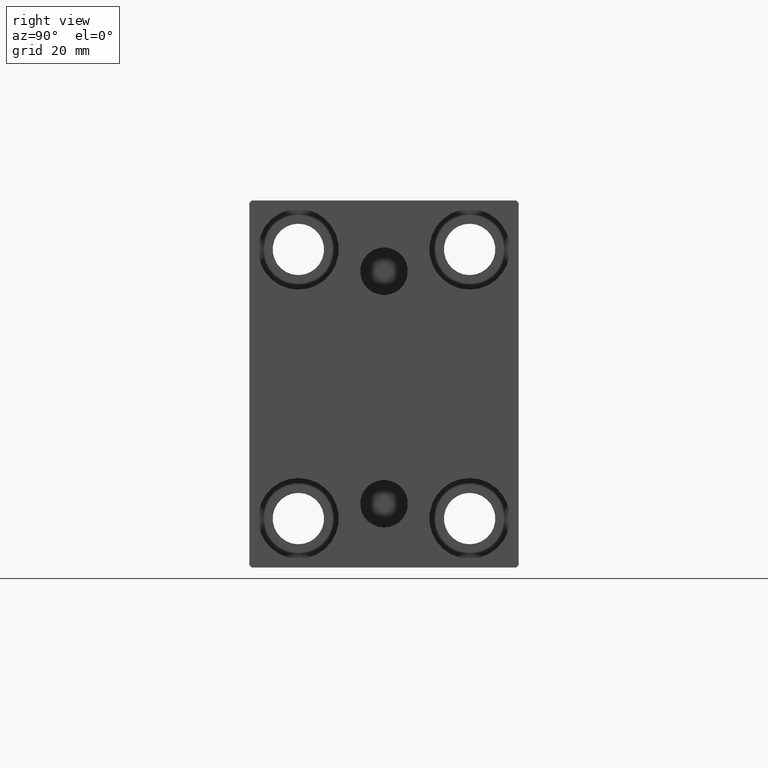
[diagram: clean part render]
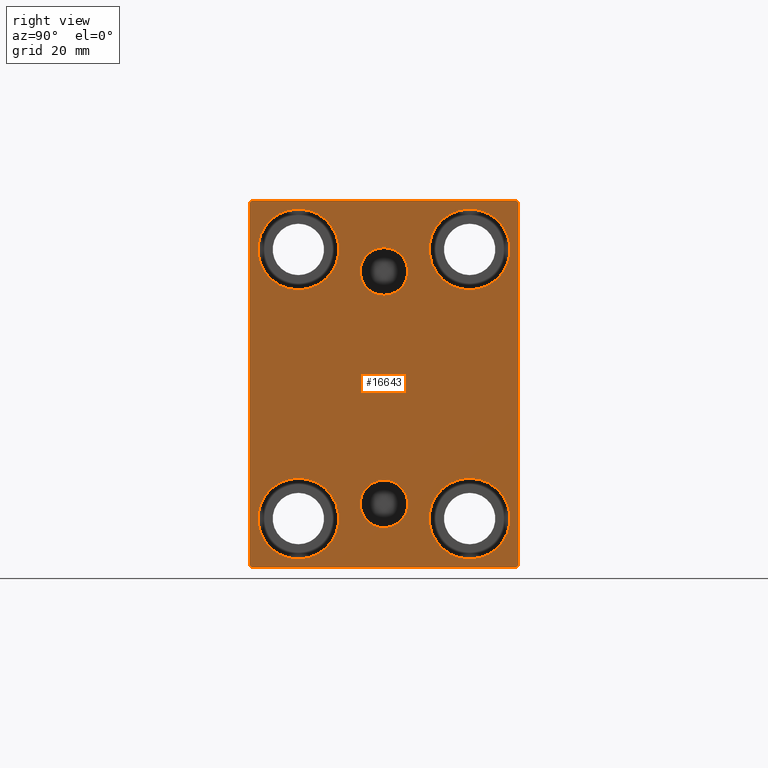
[diagram: same view with one face highlighted and labeled with its STEP entity id]
A machine part, right view. The second image highlights one B-rep face of the part: STEP entity #16643.
In plain terms, the highlighted planar face has unit normal (1, 0, 0).
Its self-contained STEP definition (entity closure, byte-faithful):
#60 = DIRECTION ( 'NONE',  ( -1.000000000000000000, -0.000000000000000000, -0.000000000000000000 ) ) ;
#912 = CARTESIAN_POINT ( 'NONE',  ( 105.0000000000000000, -17.50000000000000355, -35.75000000000000711 ) ) ;
#935 = LINE ( 'NONE', #8208, #1392 ) ;
#1025 = CARTESIAN_POINT ( 'NONE',  ( 105.0000000000000000, -17.49999999999999645, 35.74999999999999289 ) ) ;
#1082 = DIRECTION ( 'NONE',  ( -1.000000000000000000, -0.000000000000000000, -0.000000000000000000 ) ) ;
#1335 = ORIENTED_EDGE ( 'NONE', *, *, #34422, .T. ) ;
#1392 = VECTOR ( 'NONE', #1588, 1000.000000000000000 ) ;
#1551 = EDGE_CURVE ( 'NONE', #22991, #22612, #5159, .T. ) ;
#1588 = DIRECTION ( 'NONE',  ( 0.000000000000000000, -9.251858538542970348E-17, 1.000000000000000000 ) ) ;
#1899 = ORIENTED_EDGE ( 'NONE', *, *, #27460, .T. ) ;
#2094 = CIRCLE ( 'NONE', #13262, 4.859999999999999432 ) ;
#2108 = CARTESIAN_POINT ( 'NONE',  ( 105.0000000000000000, -17.50000000000000355, -19.25000000000000355 ) ) ;
#2315 = CIRCLE ( 'NONE', #39617, 8.250000000000000000 ) ;
#2333 = DIRECTION ( 'NONE',  ( 0.000000000000000000, 0.000000000000000000, 1.000000000000000000 ) ) ;
#2499 = CARTESIAN_POINT ( 'NONE',  ( 105.0000000000000000, -32.25000000000038369, -32.24999999999949551 ) ) ;
#2722 = FACE_BOUND ( 'NONE', #31240, .T. ) ;
#2873 = CARTESIAN_POINT ( 'NONE',  ( 105.0000000000000000, -3.571693674697836683E-15, 18.14000000000000767 ) ) ;
#2916 = AXIS2_PLACEMENT_3D ( 'NONE', #22879, #33638, #40458 ) ;
#3819 = CARTESIAN_POINT ( 'NONE',  ( 105.0000000000000000, 32.24999999999999289, -32.24999999999999289 ) ) ;
#3849 = CARTESIAN_POINT ( 'NONE',  ( 105.0000000000000000, -17.50000000000000355, -27.50000000000000355 ) ) ;
#4167 = DIRECTION ( 'NONE',  ( -1.000000000000000000, -0.000000000000000000, -0.000000000000000000 ) ) ;
#4876 = DIRECTION ( 'NONE',  ( 0.000000000000000000, 1.000000000000000000, 0.000000000000000000 ) ) ;
#5109 = VERTEX_POINT ( 'NONE', #9915 ) ;
#5159 = LINE ( 'NONE', #2499, #42913 ) ;
#5208 = DIRECTION ( 'NONE',  ( 0.000000000000000000, -1.000000000000000000, -1.261617073437677999E-16 ) ) ;
#6017 = ORIENTED_EDGE ( 'NONE', *, *, #15997, .T. ) ;
#6133 = LINE ( 'NONE', #43554, #19243 ) ;
#6247 = EDGE_LOOP ( 'NONE', ( #6017, #30234, #1335, #34402, #13205, #12657, #26355, #15010 ) ) ;
#6473 = FACE_BOUND ( 'NONE', #14219, .T. ) ;
#6622 = CARTESIAN_POINT ( 'NONE',  ( 105.0000000000000000, 3.595563002296627957E-15, -19.63999999999999346 ) ) ;
#6785 = DIRECTION ( 'NONE',  ( 0.000000000000000000, 0.000000000000000000, -1.000000000000000000 ) ) ;
#7027 = DIRECTION ( 'NONE',  ( 1.000000000000000000, 0.000000000000000000, 0.000000000000000000 ) ) ;
#7239 = CARTESIAN_POINT ( 'NONE',  ( 105.0000000000000000, -27.50000000000000355, -37.00000000000000000 ) ) ;
#7363 = VERTEX_POINT ( 'NONE', #36763 ) ;
#7485 = CARTESIAN_POINT ( 'NONE',  ( 105.0000000000000000, -17.49999999999999645, 27.49999999999999645 ) ) ;
#7506 = CARTESIAN_POINT ( 'NONE',  ( 105.0000000000000000, -27.00000000000001776, -37.50000000000000000 ) ) ;
#7570 = CARTESIAN_POINT ( 'NONE',  ( 105.0000000000000000, 27.49999999999999645, 37.00000000000001421 ) ) ;
#7602 = VERTEX_POINT ( 'NONE', #37129 ) ;
#7687 = VERTEX_POINT ( 'NONE', #31607 ) ;
#7858 = CARTESIAN_POINT ( 'NONE',  ( 105.0000000000000000, 27.49999999999999645, 37.50000000000000711 ) ) ;
#8208 = CARTESIAN_POINT ( 'NONE',  ( 105.0000000000000000, 27.50000000000000355, -37.50000000000000000 ) ) ;
#8375 = EDGE_LOOP ( 'NONE', ( #25540, #37096 ) ) ;
#8415 = CARTESIAN_POINT ( 'NONE',  ( 105.0000000000000000, 17.49999999999999645, -27.50000000000000355 ) ) ;
#8580 = AXIS2_PLACEMENT_3D ( 'NONE', #8415, #18757, #18327 ) ;
#9059 = AXIS2_PLACEMENT_3D ( 'NONE', #16724, #7027, #43595 ) ;
#9276 = AXIS2_PLACEMENT_3D ( 'NONE', #42437, #12264, #2333 ) ;
#9606 = CARTESIAN_POINT ( 'NONE',  ( 105.0000000000000000, 17.50000000000000355, 27.49999999999999645 ) ) ;
#9915 = CARTESIAN_POINT ( 'NONE',  ( 105.0000000000000000, 26.99999999999999645, 37.50000000000000711 ) ) ;
#9966 = CIRCLE ( 'NONE', #10668, 8.249999999999992895 ) ;
#10419 = VERTEX_POINT ( 'NONE', #2873 ) ;
#10668 = AXIS2_PLACEMENT_3D ( 'NONE', #9606, #42867, #19728 ) ;
#10671 = CARTESIAN_POINT ( 'NONE',  ( 105.0000000000000000, 17.50000000000000355, 19.25000000000000000 ) ) ;
#12138 = EDGE_LOOP ( 'NONE', ( #40632, #30740 ) ) ;
#12264 = DIRECTION ( 'NONE',  ( -1.000000000000000000, -0.000000000000000000, -0.000000000000000000 ) ) ;
#12657 = ORIENTED_EDGE ( 'NONE', *, *, #38165, .T. ) ;
#12836 = VERTEX_POINT ( 'NONE', #16959 ) ;
#12940 = CARTESIAN_POINT ( 'NONE',  ( 105.0000000000000000, 3.000384657911015074E-15, -29.35999999999999233 ) ) ;
#13205 = ORIENTED_EDGE ( 'NONE', *, *, #26136, .T. ) ;
#13262 = AXIS2_PLACEMENT_3D ( 'NONE', #23519, #16495, #6785 ) ;
#13287 = FACE_BOUND ( 'NONE', #31891, .T. ) ;
#13720 = FACE_BOUND ( 'NONE', #8375, .T. ) ;
#14036 = EDGE_CURVE ( 'NONE', #10419, #12836, #36455, .T. ) ;
#14219 = EDGE_LOOP ( 'NONE', ( #1899, #35223 ) ) ;
#14526 = DIRECTION ( 'NONE',  ( 0.000000000000000000, 0.000000000000000000, 1.000000000000000000 ) ) ;
#15010 = ORIENTED_EDGE ( 'NONE', *, *, #38019, .T. ) ;
#15154 = VERTEX_POINT ( 'NONE', #34273 ) ;
#15594 = CIRCLE ( 'NONE', #9276, 8.249999999999992895 ) ;
#15836 = CARTESIAN_POINT ( 'NONE',  ( 105.0000000000000000, -27.50000000000000355, -37.50000000000000000 ) ) ;
#15997 = EDGE_CURVE ( 'NONE', #5109, #7602, #38682, .T. ) ;
#16048 = DIRECTION ( 'NONE',  ( 0.000000000000000000, 0.000000000000000000, -1.000000000000000000 ) ) ;
#16170 = DIRECTION ( 'NONE',  ( 1.000000000000000000, 0.000000000000000000, 0.000000000000000000 ) ) ;
#16359 = CARTESIAN_POINT ( 'NONE',  ( 105.0000000000000000, -17.49999999999999645, 19.25000000000000000 ) ) ;
#16393 = DIRECTION ( 'NONE',  ( 0.000000000000000000, 0.000000000000000000, -1.000000000000000000 ) ) ;
#16495 = DIRECTION ( 'NONE',  ( 1.000000000000000000, 0.000000000000000000, 0.000000000000000000 ) ) ;
#16643 = ADVANCED_FACE ( 'NONE', ( #33340, #2722, #13720, #13287, #6473, #32906, #20318 ), #36439, .T. ) ;
#16652 = CARTESIAN_POINT ( 'NONE',  ( 105.0000000000000000, -27.50000000000000355, 37.00000000000000000 ) ) ;
#16724 = CARTESIAN_POINT ( 'NONE',  ( 105.0000000000000000, -3.571693674697836683E-15, 23.00000000000000711 ) ) ;
#16810 = VECTOR ( 'NONE', #5208, 1000.000000000000000 ) ;
#16812 = CARTESIAN_POINT ( 'NONE',  ( 105.0000000000000000, -17.49999999999999645, 27.49999999999999645 ) ) ;
#16959 = CARTESIAN_POINT ( 'NONE',  ( 105.0000000000000000, -2.976515330312223406E-15, 27.86000000000000654 ) ) ;
#17259 = DIRECTION ( 'NONE',  ( -0.000000000000000000, 0.7071067811865474617, 0.7071067811865474617 ) ) ;
#17923 = DIRECTION ( 'NONE',  ( 1.000000000000000000, 0.000000000000000000, -0.000000000000000000 ) ) ;
#18327 = DIRECTION ( 'NONE',  ( 0.000000000000000000, 0.000000000000000000, 1.000000000000000000 ) ) ;
#18512 = AXIS2_PLACEMENT_3D ( 'NONE', #21219, #17923, #34656 ) ;
#18525 = VERTEX_POINT ( 'NONE', #16359 ) ;
#18757 = DIRECTION ( 'NONE',  ( -1.000000000000000000, -0.000000000000000000, -0.000000000000000000 ) ) ;
#18805 = EDGE_CURVE ( 'NONE', #12836, #10419, #2094, .T. ) ;
#18810 = EDGE_LOOP ( 'NONE', ( #26937, #32501 ) ) ;
#18919 = EDGE_CURVE ( 'NONE', #24860, #34701, #37880, .T. ) ;
#19243 = VECTOR ( 'NONE', #16048, 1000.000000000000000 ) ;
#19249 = DIRECTION ( 'NONE',  ( -0.000000000000000000, 0.7071067811865378028, -0.7071067811865573427 ) ) ;
#19728 = DIRECTION ( 'NONE',  ( 0.000000000000000000, 0.000000000000000000, 1.000000000000000000 ) ) ;
#19732 = VECTOR ( 'NONE', #4876, 1000.000000000000000 ) ;
#19867 = CIRCLE ( 'NONE', #42380, 8.249999999999992895 ) ;
#20318 = FACE_OUTER_BOUND ( 'NONE', #6247, .T. ) ;
#20477 = CIRCLE ( 'NONE', #32446, 8.249999999999992895 ) ;
#20868 = CARTESIAN_POINT ( 'NONE',  ( 105.0000000000000000, 17.49999999999999645, -19.25000000000000355 ) ) ;
#20905 = CARTESIAN_POINT ( 'NONE',  ( 105.0000000000000000, -17.50000000000000355, -27.50000000000000355 ) ) ;
#20989 = DIRECTION ( 'NONE',  ( -0.000000000000000000, -0.7071067811865524577, 0.7071067811865426878 ) ) ;
#21219 = CARTESIAN_POINT ( 'NONE',  ( 105.0000000000000000, 3.000384657911015074E-15, -24.49999999999999289 ) ) ;
#21437 = CARTESIAN_POINT ( 'NONE',  ( 105.0000000000000000, 32.24999999999981526, 32.25000000000025580 ) ) ;
#21496 = VERTEX_POINT ( 'NONE', #41454 ) ;
#21899 = CIRCLE ( 'NONE', #2916, 4.859999999999999432 ) ;
#22314 = EDGE_CURVE ( 'NONE', #21496, #42280, #935, .T. ) ;
#22612 = VERTEX_POINT ( 'NONE', #7506 ) ;
#22879 = CARTESIAN_POINT ( 'NONE',  ( 105.0000000000000000, 3.000384657911015074E-15, -24.49999999999999289 ) ) ;
#22991 = VERTEX_POINT ( 'NONE', #7239 ) ;
#22993 = CARTESIAN_POINT ( 'NONE',  ( 105.0000000000000000, 0.000000000000000000, 0.000000000000000000 ) ) ;
#23319 = CIRCLE ( 'NONE', #8580, 8.250000000000000000 ) ;
#23519 = CARTESIAN_POINT ( 'NONE',  ( 105.0000000000000000, -3.571693674697836683E-15, 23.00000000000000711 ) ) ;
#23566 = CARTESIAN_POINT ( 'NONE',  ( 105.0000000000000000, -32.25000000000000000, 32.25000000000000000 ) ) ;
#24860 = VERTEX_POINT ( 'NONE', #912 ) ;
#25049 = ORIENTED_EDGE ( 'NONE', *, *, #32094, .F. ) ;
#25243 = AXIS2_PLACEMENT_3D ( 'NONE', #22993, #16170, #16393 ) ;
#25407 = CIRCLE ( 'NONE', #40883, 8.250000000000000000 ) ;
#25540 = ORIENTED_EDGE ( 'NONE', *, *, #32652, .T. ) ;
#25567 = VECTOR ( 'NONE', #20989, 1000.000000000000000 ) ;
#25939 = AXIS2_PLACEMENT_3D ( 'NONE', #3849, #33803, #31166 ) ;
#26136 = EDGE_CURVE ( 'NONE', #22612, #7687, #41672, .T. ) ;
#26355 = ORIENTED_EDGE ( 'NONE', *, *, #22314, .T. ) ;
#26605 = VERTEX_POINT ( 'NONE', #10671 ) ;
#26915 = EDGE_CURVE ( 'NONE', #34701, #24860, #25407, .T. ) ;
#26937 = ORIENTED_EDGE ( 'NONE', *, *, #18919, .T. ) ;
#26943 = DIRECTION ( 'NONE',  ( 0.000000000000000000, 0.000000000000000000, 1.000000000000000000 ) ) ;
#27013 = EDGE_CURVE ( 'NONE', #27221, #18525, #20477, .T. ) ;
#27116 = EDGE_CURVE ( 'NONE', #36499, #29833, #21899, .T. ) ;
#27221 = VERTEX_POINT ( 'NONE', #1025 ) ;
#27460 = EDGE_CURVE ( 'NONE', #26605, #15154, #15594, .T. ) ;
#27521 = DIRECTION ( 'NONE',  ( 0.000000000000000000, -0.7071067811865474617, -0.7071067811865474617 ) ) ;
#28367 = EDGE_CURVE ( 'NONE', #15154, #26605, #9966, .T. ) ;
#28383 = CARTESIAN_POINT ( 'NONE',  ( 105.0000000000000000, 17.49999999999999645, -27.50000000000000355 ) ) ;
#28596 = DIRECTION ( 'NONE',  ( -1.000000000000000000, -0.000000000000000000, -0.000000000000000000 ) ) ;
#28704 = EDGE_CURVE ( 'NONE', #40853, #7363, #23319, .T. ) ;
#29833 = VERTEX_POINT ( 'NONE', #6622 ) ;
#29847 = EDGE_CURVE ( 'NONE', #7602, #43509, #40309, .T. ) ;
#30234 = ORIENTED_EDGE ( 'NONE', *, *, #29847, .T. ) ;
#30740 = ORIENTED_EDGE ( 'NONE', *, *, #18805, .F. ) ;
#31047 = DIRECTION ( 'NONE',  ( 0.000000000000000000, 0.000000000000000000, 1.000000000000000000 ) ) ;
#31166 = DIRECTION ( 'NONE',  ( 0.000000000000000000, 0.000000000000000000, 1.000000000000000000 ) ) ;
#31240 = EDGE_LOOP ( 'NONE', ( #42851, #25049 ) ) ;
#31476 = EDGE_CURVE ( 'NONE', #18525, #27221, #19867, .T. ) ;
#31607 = CARTESIAN_POINT ( 'NONE',  ( 105.0000000000000000, 26.99999999999998934, -37.50000000000000000 ) ) ;
#31891 = EDGE_LOOP ( 'NONE', ( #36451, #41302 ) ) ;
#32094 = EDGE_CURVE ( 'NONE', #29833, #36499, #37499, .T. ) ;
#32446 = AXIS2_PLACEMENT_3D ( 'NONE', #7485, #4167, #31047 ) ;
#32501 = ORIENTED_EDGE ( 'NONE', *, *, #26915, .T. ) ;
#32652 = EDGE_CURVE ( 'NONE', #7363, #40853, #2315, .T. ) ;
#32906 = FACE_BOUND ( 'NONE', #18810, .T. ) ;
#33340 = FACE_BOUND ( 'NONE', #12138, .T. ) ;
#33638 = DIRECTION ( 'NONE',  ( 1.000000000000000000, 0.000000000000000000, -0.000000000000000000 ) ) ;
#33803 = DIRECTION ( 'NONE',  ( -1.000000000000000000, -0.000000000000000000, -0.000000000000000000 ) ) ;
#33995 = LINE ( 'NONE', #3819, #38915 ) ;
#34273 = CARTESIAN_POINT ( 'NONE',  ( 105.0000000000000000, 17.50000000000000355, 35.74999999999999289 ) ) ;
#34402 = ORIENTED_EDGE ( 'NONE', *, *, #1551, .T. ) ;
#34422 = EDGE_CURVE ( 'NONE', #43509, #22991, #6133, .T. ) ;
#34649 = LINE ( 'NONE', #21437, #25567 ) ;
#34656 = DIRECTION ( 'NONE',  ( 0.000000000000000000, 0.000000000000000000, 1.000000000000000000 ) ) ;
#34701 = VERTEX_POINT ( 'NONE', #2108 ) ;
#35223 = ORIENTED_EDGE ( 'NONE', *, *, #28367, .T. ) ;
#36439 = PLANE ( 'NONE',  #25243 ) ;
#36451 = ORIENTED_EDGE ( 'NONE', *, *, #31476, .T. ) ;
#36455 = CIRCLE ( 'NONE', #9059, 4.859999999999999432 ) ;
#36499 = VERTEX_POINT ( 'NONE', #12940 ) ;
#36763 = CARTESIAN_POINT ( 'NONE',  ( 105.0000000000000000, 17.49999999999999645, -35.75000000000000711 ) ) ;
#37096 = ORIENTED_EDGE ( 'NONE', *, *, #28704, .T. ) ;
#37129 = CARTESIAN_POINT ( 'NONE',  ( 105.0000000000000000, -27.00000000000000355, 37.50000000000000000 ) ) ;
#37499 = CIRCLE ( 'NONE', #18512, 4.859999999999999432 ) ;
#37880 = CIRCLE ( 'NONE', #25939, 8.250000000000000000 ) ;
#38019 = EDGE_CURVE ( 'NONE', #42280, #5109, #34649, .T. ) ;
#38165 = EDGE_CURVE ( 'NONE', #7687, #21496, #33995, .T. ) ;
#38682 = LINE ( 'NONE', #7858, #16810 ) ;
#38915 = VECTOR ( 'NONE', #17259, 1000.000000000000114 ) ;
#39617 = AXIS2_PLACEMENT_3D ( 'NONE', #28383, #28596, #42033 ) ;
#40309 = LINE ( 'NONE', #23566, #43075 ) ;
#40458 = DIRECTION ( 'NONE',  ( 0.000000000000000000, 0.000000000000000000, 1.000000000000000000 ) ) ;
#40632 = ORIENTED_EDGE ( 'NONE', *, *, #14036, .F. ) ;
#40853 = VERTEX_POINT ( 'NONE', #20868 ) ;
#40883 = AXIS2_PLACEMENT_3D ( 'NONE', #20905, #1082, #14526 ) ;
#41302 = ORIENTED_EDGE ( 'NONE', *, *, #27013, .T. ) ;
#41454 = CARTESIAN_POINT ( 'NONE',  ( 105.0000000000000000, 27.50000000000000355, -36.99999999999998579 ) ) ;
#41672 = LINE ( 'NONE', #15836, #19732 ) ;
#42033 = DIRECTION ( 'NONE',  ( 0.000000000000000000, 0.000000000000000000, 1.000000000000000000 ) ) ;
#42280 = VERTEX_POINT ( 'NONE', #7570 ) ;
#42380 = AXIS2_PLACEMENT_3D ( 'NONE', #16812, #60, #26943 ) ;
#42437 = CARTESIAN_POINT ( 'NONE',  ( 105.0000000000000000, 17.50000000000000355, 27.49999999999999645 ) ) ;
#42851 = ORIENTED_EDGE ( 'NONE', *, *, #27116, .F. ) ;
#42867 = DIRECTION ( 'NONE',  ( -1.000000000000000000, -0.000000000000000000, -0.000000000000000000 ) ) ;
#42913 = VECTOR ( 'NONE', #19249, 1000.000000000000000 ) ;
#43075 = VECTOR ( 'NONE', #27521, 1000.000000000000114 ) ;
#43509 = VERTEX_POINT ( 'NONE', #16652 ) ;
#43554 = CARTESIAN_POINT ( 'NONE',  ( 105.0000000000000000, -27.50000000000000355, 37.50000000000000000 ) ) ;
#43595 = DIRECTION ( 'NONE',  ( 0.000000000000000000, 0.000000000000000000, -1.000000000000000000 ) ) ;